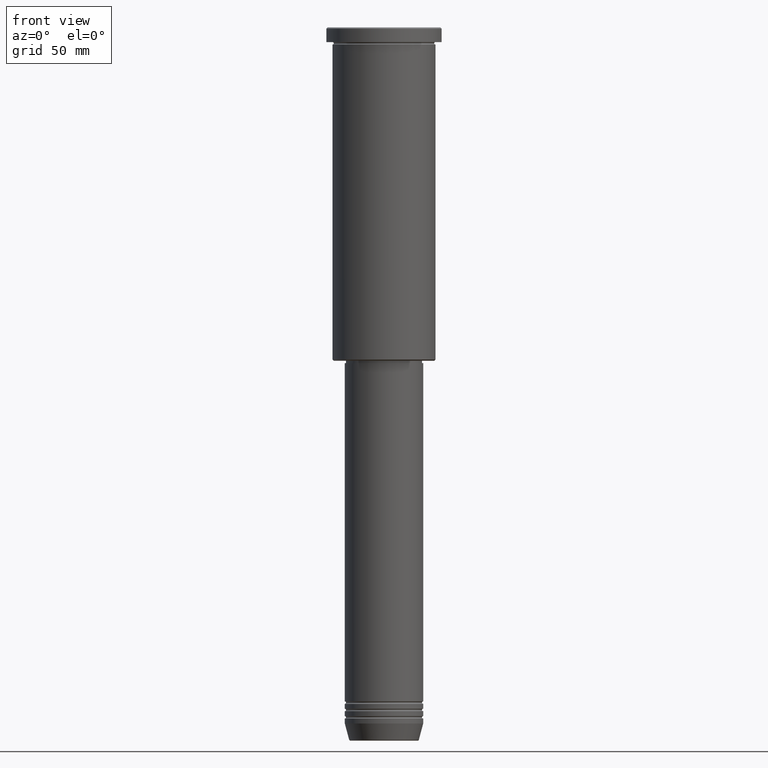
[diagram: clean part render]
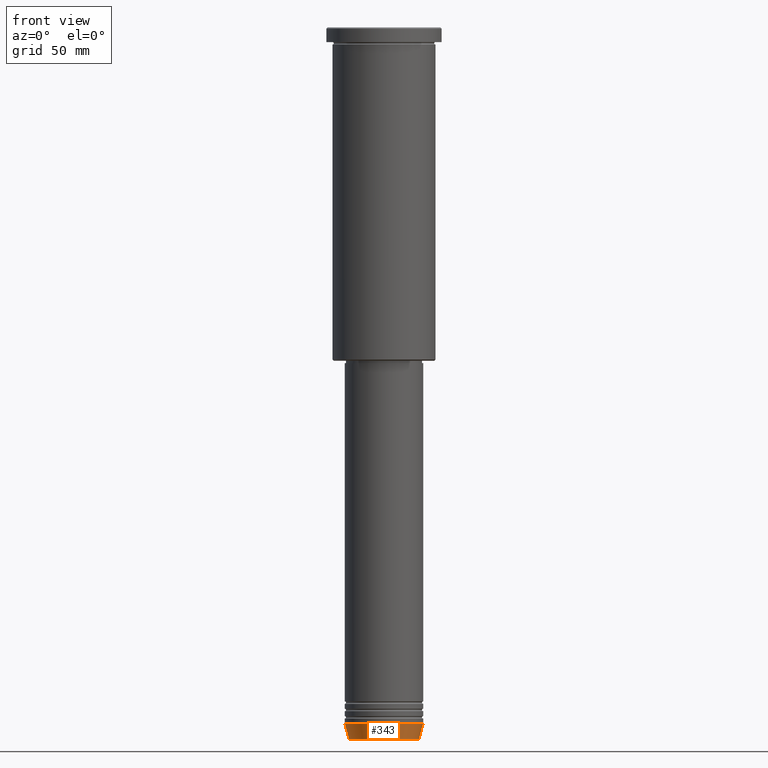
[diagram: same view with one face highlighted and labeled with its STEP entity id]
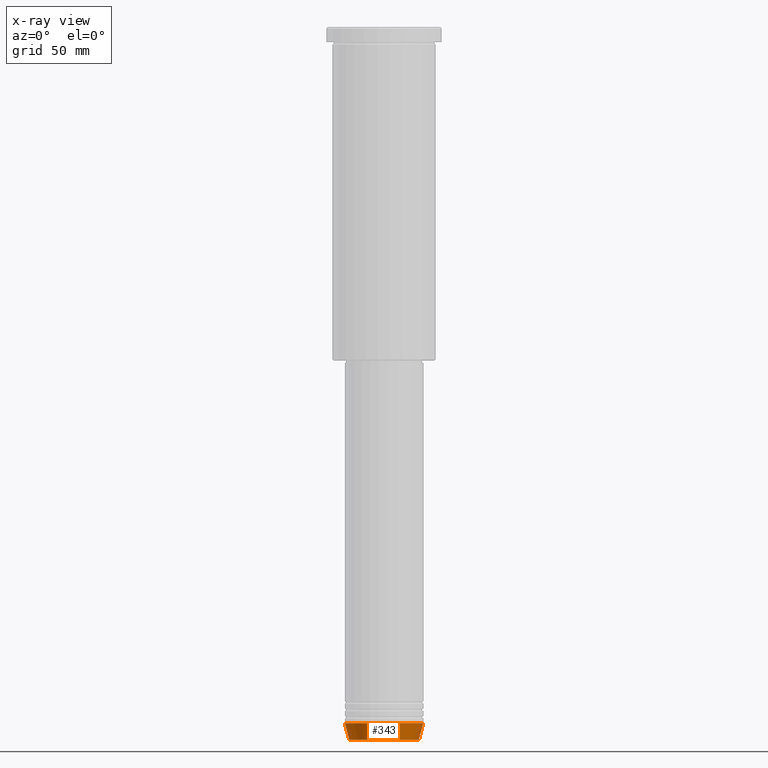
[diagram: x-ray of the same camera — body ghosted, the highlighted face saturated]
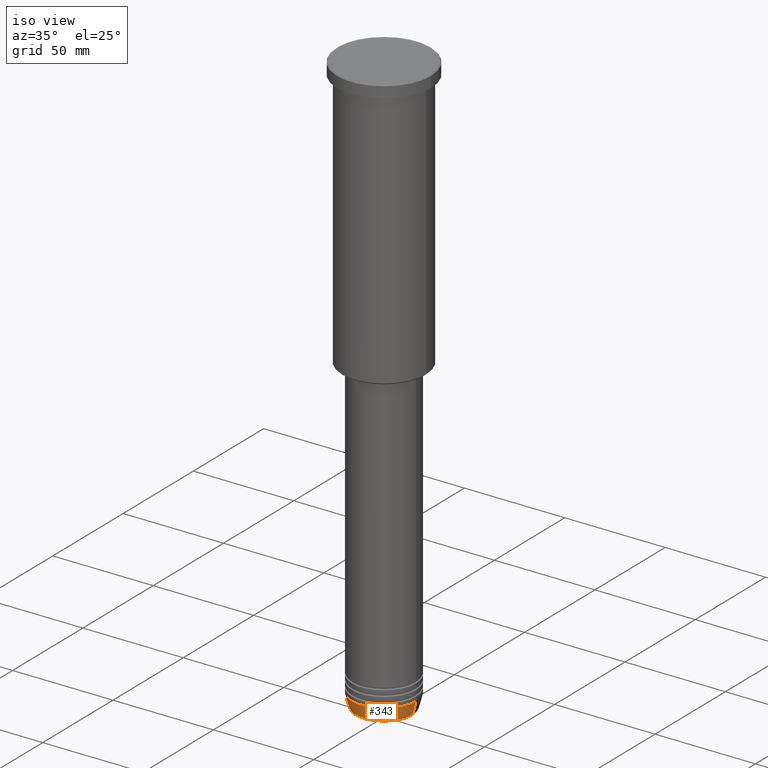
[diagram: same view with one face highlighted and labeled with its STEP entity id]
A machine part, front view. The second image highlights one B-rep face of the part: STEP entity #343.
The next image is the same camera in x-ray: the body ghosted, the highlighted face saturated — about 0% of this face is hidden behind the body in this view.
A second angle (iso view) of the same face is appended — the face is thin or edge-on in the first view.
In plain terms, the highlighted conical surface has half-angle 15 deg.
Its self-contained STEP definition (entity closure, byte-faithful):
#26 = CARTESIAN_POINT ( 'NONE',  ( -16.00000000000000000, 1.959434878635765131E-15, -284.0000000000000568 ) ) ;
#40 = DIRECTION ( 'NONE',  ( 1.000000000000000000, 0.000000000000000000, 0.000000000000000000 ) ) ;
#77 = CONICAL_SURFACE ( 'NONE', #744, 16.00000000000000000, 0.2617993877991500740 ) ;
#102 = EDGE_CURVE ( 'NONE', #1118, #613, #442, .T. ) ;
#106 = VERTEX_POINT ( 'NONE', #737 ) ;
#128 = VECTOR ( 'NONE', #912, 1000.000000000000000 ) ;
#157 = AXIS2_PLACEMENT_3D ( 'NONE', #1026, #669, #215 ) ;
#215 = DIRECTION ( 'NONE',  ( 1.000000000000000000, 0.000000000000000000, 0.000000000000000000 ) ) ;
#316 = DIRECTION ( 'NONE',  ( 1.000000000000000000, 0.000000000000000000, 0.000000000000000000 ) ) ;
#319 = ORIENTED_EDGE ( 'NONE', *, *, #1091, .F. ) ;
#332 = CIRCLE ( 'NONE', #992, 14.22365507213718772 ) ;
#343 = ADVANCED_FACE ( 'NONE', ( #520 ), #77, .T. ) ;
#362 = CARTESIAN_POINT ( 'NONE',  ( 16.00000000000000000, 0.000000000000000000, -284.0000000000000568 ) ) ;
#407 = CARTESIAN_POINT ( 'NONE',  ( 0.000000000000000000, 0.000000000000000000, -290.6294095225512706 ) ) ;
#413 = CARTESIAN_POINT ( 'NONE',  ( 0.000000000000000000, 0.000000000000000000, -284.0000000000000568 ) ) ;
#416 = EDGE_LOOP ( 'NONE', ( #319, #516, #1059, #1092 ) ) ;
#429 = DIRECTION ( 'NONE',  ( -0.000000000000000000, -0.000000000000000000, 1.000000000000000000 ) ) ;
#442 = LINE ( 'NONE', #362, #128 ) ;
#471 = CARTESIAN_POINT ( 'NONE',  ( 14.22365507213718772, 0.000000000000000000, -290.6294095225512706 ) ) ;
#479 = CARTESIAN_POINT ( 'NONE',  ( -16.00000000000000000, 1.959434878635765131E-15, -284.0000000000000568 ) ) ;
#516 = ORIENTED_EDGE ( 'NONE', *, *, #636, .T. ) ;
#520 = FACE_OUTER_BOUND ( 'NONE', #416, .T. ) ;
#571 = DIRECTION ( 'NONE',  ( -0.000000000000000000, -0.000000000000000000, 1.000000000000000000 ) ) ;
#613 = VERTEX_POINT ( 'NONE', #727 ) ;
#636 = EDGE_CURVE ( 'NONE', #106, #1118, #332, .T. ) ;
#645 = VERTEX_POINT ( 'NONE', #26 ) ;
#669 = DIRECTION ( 'NONE',  ( -0.000000000000000000, -0.000000000000000000, 1.000000000000000000 ) ) ;
#724 = EDGE_CURVE ( 'NONE', #645, #613, #1169, .T. ) ;
#727 = CARTESIAN_POINT ( 'NONE',  ( 16.00000000000000000, 0.000000000000000000, -284.0000000000000568 ) ) ;
#737 = CARTESIAN_POINT ( 'NONE',  ( -14.22365507213718772, 1.850665122131323337E-15, -290.6294095225512706 ) ) ;
#744 = AXIS2_PLACEMENT_3D ( 'NONE', #413, #429, #40 ) ;
#757 = DIRECTION ( 'NONE',  ( -0.2588190451025213501, 3.169619151431772337E-17, 0.9659258262890680902 ) ) ;
#859 = LINE ( 'NONE', #479, #1172 ) ;
#912 = DIRECTION ( 'NONE',  ( 0.2588190451025213501, 0.000000000000000000, 0.9659258262890680902 ) ) ;
#992 = AXIS2_PLACEMENT_3D ( 'NONE', #407, #571, #316 ) ;
#1026 = CARTESIAN_POINT ( 'NONE',  ( 0.000000000000000000, 0.000000000000000000, -284.0000000000000568 ) ) ;
#1059 = ORIENTED_EDGE ( 'NONE', *, *, #102, .T. ) ;
#1091 = EDGE_CURVE ( 'NONE', #106, #645, #859, .T. ) ;
#1092 = ORIENTED_EDGE ( 'NONE', *, *, #724, .F. ) ;
#1118 = VERTEX_POINT ( 'NONE', #471 ) ;
#1169 = CIRCLE ( 'NONE', #157, 16.00000000000000000 ) ;
#1172 = VECTOR ( 'NONE', #757, 1000.000000000000000 ) ;